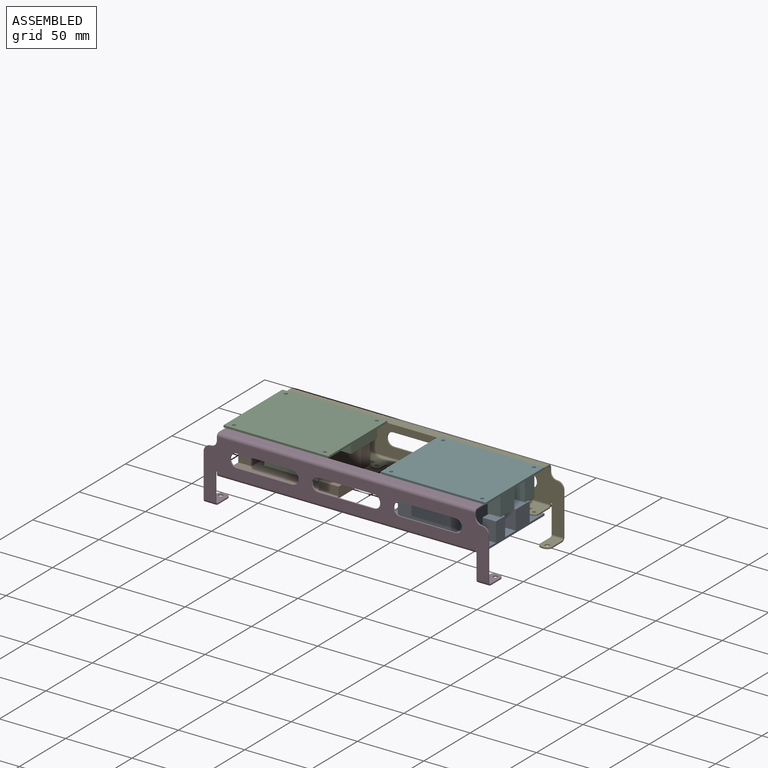
[diagram: assembled view]
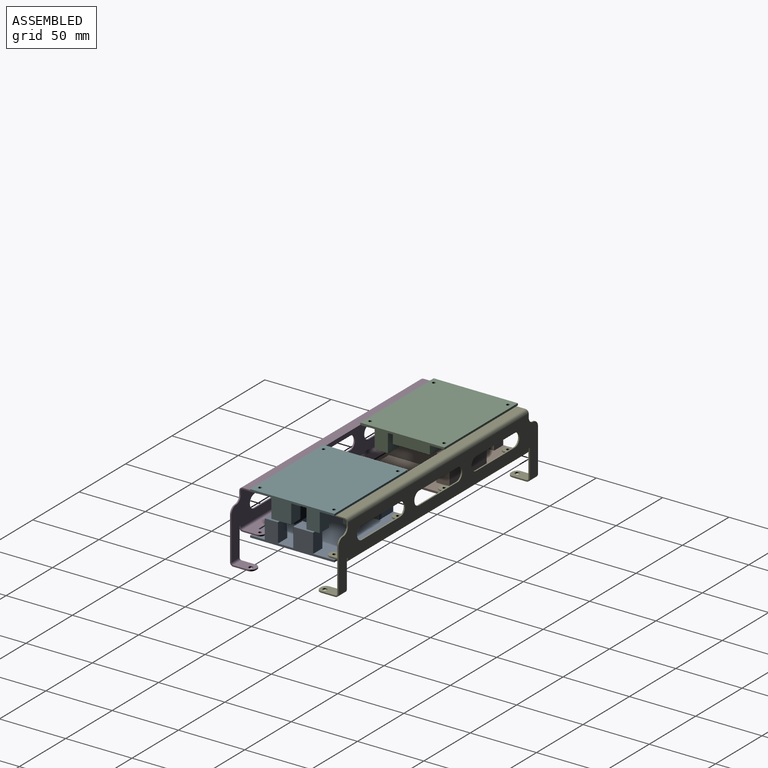
[diagram: assembled view, second angle]
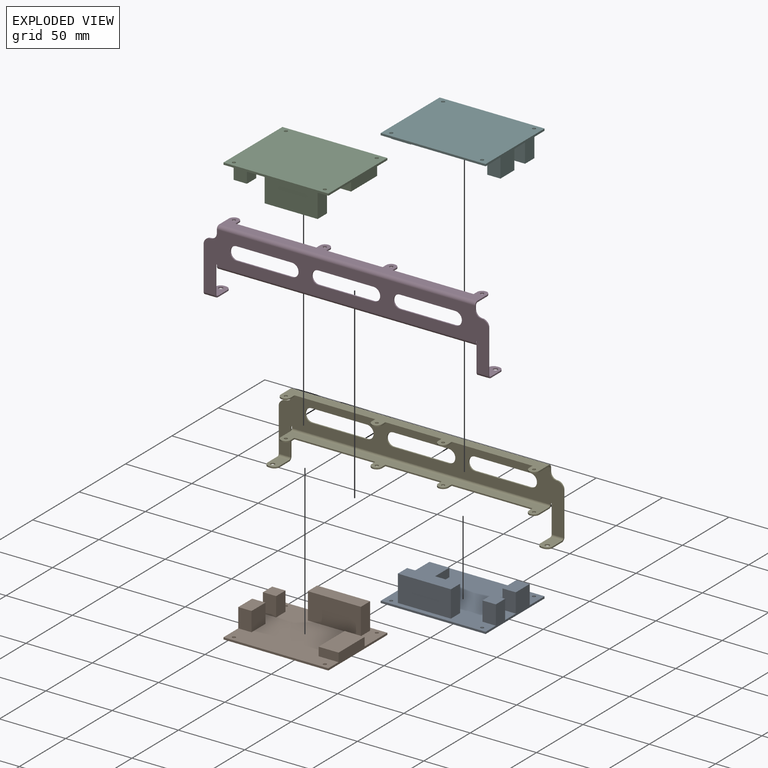
[diagram: exploded view]
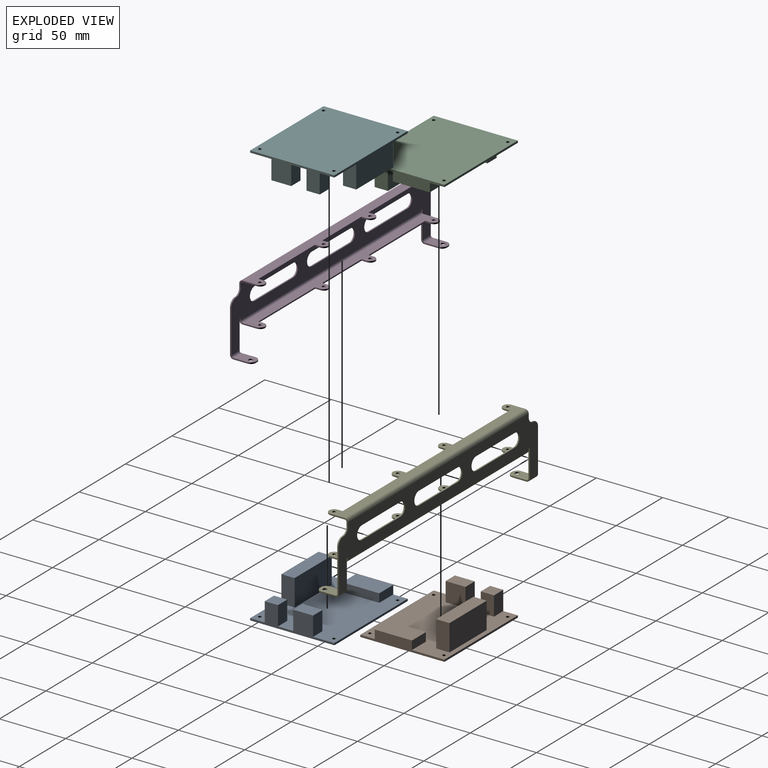
[diagram: exploded view, second angle]
ASSEMBLY  parts=6 mates=5
PART A: 27 faces, bbox 63.5x79.1x21.5 mm
  f0: plane 79.12x63.5mm, normal (0,0,1), area 3934.5mm2, adj f1,f2,f3,f4,f6,f7,f8,f9
  f1: plane 63.5x8mm, normal (0,-1,0), area 277.3mm2, adj f0,f2,f4,f5,f23,f24,f26
  f2: plane 79.12x1.5mm, normal (1,0,0), area 118.7mm2, adj f0,f1,f3,f5
  f3: plane 63.5x16mm, normal (0,1,0), area 457.7mm2, adj f0,f2,f4,f5,f10,f12,f13,f14
  f4: plane 79.12x1.5mm, normal (-1,0,0), area 118.7mm2, adj f0,f1,f3,f5
  f5: plane 79.12x63.5mm, normal (0,0,-1), area 5004.5mm2, adj f1,f2,f3,f4,f6,f7,f8,f9
  f6: cylinder r=1.25mm len=2.5mm, axis (0,0,1), area 11.8mm2, adj f0,f5
  f7: cylinder r=1.25mm len=2.5mm, axis (0,0,1), area 11.8mm2, adj f0,f5
  f8: cylinder r=1.25mm len=2.5mm, axis (0,0,1), area 11.8mm2, adj f0,f5
  f9: cylinder r=1.25mm len=2.5mm, axis (0,0,1), area 11.8mm2, adj f0,f5
  f10: plane 14.5x10mm, normal (-1,0,0), area 145mm2, adj f0,f3,f11,f13
  f11: plane 15x14.5mm, normal (0,-1,0), area 217.5mm2, adj f0,f10,f12,f13
  f12: plane 14.5x10mm, normal (1,0,0), area 145mm2, adj f0,f3,f11,f13
  f13: plane 15x10mm, normal (0,0,1), area 150mm2, adj f3,f10,f11,f12
  f14: plane 14.5x10mm, normal (1,0,0), area 145mm2, adj f0,f3,f16,f17
  f15: plane 14.5x10mm, normal (-1,0,0), area 145mm2, adj f0,f3,f16,f17
  f16: plane 14.5x10mm, normal (0,-1,0), area 145mm2, adj f0,f14,f15,f17
  f17: plane 10x10mm, normal (0,0,1), area 100mm2, adj f3,f14,f15,f16
  f18: plane 20x10mm, normal (0,1,0), area 200mm2, adj f0,f19,f21,f22
  f19: plane 40x20mm, normal (-1,0,0), area 800mm2, adj f0,f18,f20,f22
  f20: plane 20x10mm, normal (0,-1,0), area 200mm2, adj f0,f19,f21,f22
  f21: plane 40x20mm, normal (1,0,0), area 800mm2, adj f0,f18,f20,f22
  f22: plane 40x10mm, normal (0,0,1), area 400mm2, adj f18,f19,f20,f21
  f23: plane 15x6.5mm, normal (-1,0,0), area 97.5mm2, adj f0,f1,f25,f26
  f24: plane 15x6.5mm, normal (1,0,0), area 97.5mm2, adj f0,f1,f25,f26
  f25: plane 28x6.5mm, normal (0,1,0), area 182mm2, adj f0,f23,f24,f26
  f26: plane 28x15mm, normal (0,0,1), area 420mm2, adj f1,f23,f24,f25
PART B: same geometry as A
PART C: same geometry as A
PART D: 102 faces, bbox 214.8x16.8x50 mm
  f0: plane 214.76x45mm, normal (0,-1,0), area 4090.8mm2, adj f2,f3,f4,f5,f6,f7,f8,f9
  f1: plane 214.76x45mm, normal (0,1,0), area 4090.8mm2, adj f2,f3,f4,f5,f6,f7,f8,f9
  f2: plane 41.59x1mm, normal (0,0,1), area 41.6mm2, adj f0,f1,f15,f23
  f3: plane 41.59x1mm, normal (0,0,-1), area 41.6mm2, adj f0,f1,f17,f20
  f4: plane 20.75x1mm, normal (-1,0,0), area 20.7mm2, adj f0,f1,f24,f98
  f5: plane 32.5x1mm, normal (1,0,0), area 32.5mm2, adj f0,f1,f22,f99
  f6: plane 2.5x1mm, normal (1,0,0), area 2.5mm2, adj f0,f1,f21,f74
  f7: plane 2.5x1mm, normal (-1,0,0), area 2.5mm2, adj f0,f1,f18,f75
  f8: plane 32.5x1mm, normal (-1,0,0), area 32.5mm2, adj f0,f1,f19,f86
  f9: plane 41.59x1mm, normal (0,0,-1), area 41.6mm2, adj f0,f1,f14,f16
  f10: plane 41.59x1mm, normal (0,0,1), area 41.6mm2, adj f0,f1,f14,f16
  f11: plane 20.75x1mm, normal (1,0,0), area 20.7mm2, adj f0,f1,f27,f87
  f12: plane 41.59x1mm, normal (0,0,1), area 41.6mm2, adj f0,f1,f17,f20
  f13: plane 41.59x1mm, normal (0,0,-1), area 41.6mm2, adj f0,f1,f15,f23
  f14: cylinder r=5mm len=10mm, axis (0,1,0), area 15.7mm2, adj f0,f1,f9,f10
  f15: cylinder r=5mm len=10mm, axis (0,-1,0), area 15.7mm2, adj f0,f1,f2,f13
  f16: cylinder r=5mm len=10mm, axis (0,1,0), area 15.7mm2, adj f0,f1,f9,f10
  f17: cylinder r=5mm len=10mm, axis (0,-1,0), area 15.7mm2, adj f0,f1,f3,f12
  f18: cylinder r=5mm len=5mm, axis (0,-1,0), area 7.9mm2, adj f0,f1,f7,f19
  f19: cylinder r=5mm len=5mm, axis (0,-1,0), area 7.9mm2, adj f0,f1,f8,f18
  f20: cylinder r=5mm len=10mm, axis (0,1,0), area 15.7mm2, adj f0,f1,f3,f12
  f21: cylinder r=5mm len=5mm, axis (0,1,0), area 7.9mm2, adj f0,f1,f6,f22
  f22: cylinder r=5mm len=5mm, axis (0,-1,0), area 7.9mm2, adj f0,f1,f5,f21
  f23: cylinder r=5mm len=10mm, axis (0,-1,0), area 15.7mm2, adj f0,f1,f2,f13
  f24: cylinder r=0.53mm len=1.06mm, axis (0,1,0), area 1.7mm2, adj f0,f1,f4,f25
  f25: plane 1x0.75mm, normal (1,0,0), area 0.7mm2, adj f0,f1,f24,f49
  f26: plane 1x0.75mm, normal (-1,0,0), area 0.7mm2, adj f0,f1,f27,f50
  f27: cylinder r=0.53mm len=1.06mm, axis (0,1,0), area 1.7mm2, adj f0,f1,f11,f26
  f28: cylinder r=3.8mm len=7.6mm, axis (0,0,-1), area 11.9mm2, adj f29,f46,f47,f48
  f29: plane 3.8x1mm, normal (1,0,0), area 3.8mm2, adj f28,f30,f47,f48
  f30: plane 60.98x1mm, normal (0,1,0), area 61mm2, adj f29,f31,f47,f48
  f31: plane 3.8x1mm, normal (-1,0,0), area 3.8mm2, adj f30,f32,f47,f48
  f32: cylinder r=3.8mm len=7.6mm, axis (0,0,-1), area 11.9mm2, adj f31,f33,f47,f48
  f33: plane 3.8x1mm, normal (1,0,0), area 3.8mm2, adj f32,f34,f47,f48
  f34: plane 42.4x1mm, normal (0,1,0), area 42.4mm2, adj f33,f35,f47,f48
  f35: plane 3.8x1mm, normal (-1,0,0), area 3.8mm2, adj f34,f36,f47,f48
  f36: cylinder r=3.8mm len=7.6mm, axis (0,0,-1), area 11.9mm2, adj f35,f37,f47,f48
  f37: plane 3.8x1mm, normal (1,0,0), area 3.8mm2, adj f36,f38,f47,f48
  f38: plane 60.98x1mm, normal (0,1,0), area 61mm2, adj f37,f39,f47,f48
  f39: plane 3.8x1mm, normal (-1,0,0), area 3.8mm2, adj f38,f40,f47,f48
  f40: cylinder r=3.8mm len=7.6mm, axis (0,0,-1), area 11.9mm2, adj f39,f41,f47,f48
  f41: plane 10.5x1mm, normal (1,0,0), area 10.5mm2, adj f40,f47,f48,f49
  f42: cylinder r=1.25mm len=2.5mm, axis (0,0,-1), area 7.9mm2, adj f47,f48
  f43: cylinder r=1.25mm len=2.5mm, axis (0,0,-1), area 7.9mm2, adj f47,f48
  f44: cylinder r=1.25mm len=2.5mm, axis (0,0,-1), area 7.9mm2, adj f47,f48
  f45: cylinder r=1.25mm len=2.5mm, axis (0,0,-1), area 7.9mm2, adj f47,f48
  f46: plane 10.5x1mm, normal (-1,0,0), area 10.5mm2, adj f28,f47,f48,f50
  f47: plane 194.76x14.3mm, normal (0,0,-1), area 1491.5mm2, adj f28,f29,f30,f31,f32,f33,f34,f35
  f48: plane 194.76x14.3mm, normal (0,0,1), area 1491.5mm2, adj f28,f29,f30,f31,f32,f33,f34,f35
  f49: plane 2.5x2.5mm, normal (1,0,0), area 3.1mm2, adj f25,f41,f51,f52
  f50: plane 2.5x2.5mm, normal (-1,0,0), area 3.1mm2, adj f26,f46,f51,f52
  f51: cylinder r=2.5mm len=194.76mm, axis (1,0,0), area 764.8mm2, adj f0,f47,f49,f50
  f52: cylinder r=1.5mm len=194.76mm, axis (1,0,0), area 458.9mm2, adj f1,f48,f49,f50
  f53: cylinder r=3.8mm len=7.6mm, axis (0,0,1), area 11.9mm2, adj f54,f71,f72,f73
  f54: plane 3.8x1mm, normal (-1,0,0), area 3.8mm2, adj f53,f55,f72,f73
  f55: plane 60.98x1mm, normal (0,1,0), area 61mm2, adj f54,f56,f72,f73
  f56: plane 3.8x1mm, normal (1,0,0), area 3.8mm2, adj f55,f57,f72,f73
  f57: cylinder r=3.8mm len=7.6mm, axis (0,0,1), area 11.9mm2, adj f56,f58,f72,f73
  f58: plane 3.8x1mm, normal (-1,0,0), area 3.8mm2, adj f57,f59,f72,f73
  f59: plane 42.4x1mm, normal (0,1,0), area 42.4mm2, adj f58,f60,f72,f73
  f60: plane 3.8x1mm, normal (1,0,0), area 3.8mm2, adj f59,f61,f72,f73
  f61: cylinder r=3.8mm len=7.6mm, axis (0,0,1), area 11.9mm2, adj f60,f62,f72,f73
  f62: plane 3.8x1mm, normal (-1,0,0), area 3.8mm2, adj f61,f63,f72,f73
  f63: plane 60.98x1mm, normal (0,1,0), area 61mm2, adj f62,f64,f72,f73
  f64: plane 3.8x1mm, normal (1,0,0), area 3.8mm2, adj f63,f65,f72,f73
  f65: cylinder r=3.8mm len=7.6mm, axis (0,0,1), area 11.9mm2, adj f64,f66,f72,f73
  f66: plane 10.5x1mm, normal (-1,0,0), area 10.5mm2, adj f65,f72,f73,f75
  f67: cylinder r=1.25mm len=2.5mm, axis (0,0,1), area 7.9mm2, adj f72,f73
  f68: cylinder r=1.25mm len=2.5mm, axis (0,0,1), area 7.9mm2, adj f72,f73
  f69: cylinder r=1.25mm len=2.5mm, axis (0,0,1), area 7.9mm2, adj f72,f73
  f70: cylinder r=1.25mm len=2.5mm, axis (0,0,1), area 7.9mm2, adj f72,f73
  f71: plane 10.5x1mm, normal (1,0,0), area 10.5mm2, adj f53,f72,f73,f74
  f72: plane 194.76x14.3mm, normal (0,0,1), area 1491.5mm2, adj f53,f54,f55,f56,f57,f58,f59,f60
  f73: plane 194.76x14.3mm, normal (0,0,-1), area 1491.5mm2, adj f53,f54,f55,f56,f57,f58,f59,f60
  f74: plane 2.5x2.5mm, normal (1,0,0), area 3.1mm2, adj f6,f71,f76,f77
  f75: plane 2.5x2.5mm, normal (-1,0,0), area 3.1mm2, adj f7,f66,f76,f77
  f76: cylinder r=2.5mm len=194.76mm, axis (1,0,0), area 764.8mm2, adj f0,f72,f74,f75
  f77: cylinder r=1.5mm len=194.76mm, axis (1,0,0), area 458.9mm2, adj f1,f73,f74,f75
  f78: cylinder r=3.8mm len=3.8mm, axis (0,0,-1), area 6mm2, adj f79,f83,f84,f85
  f79: plane 1.34x1mm, normal (0,1,0), area 1.3mm2, adj f78,f80,f84,f85
  f80: cylinder r=3.8mm len=3.8mm, axis (0,0,-1), area 6mm2, adj f79,f81,f84,f85
  f81: plane 10.5x1mm, normal (1,0,0), area 10.5mm2, adj f80,f84,f85,f87
  f82: cylinder r=1.6mm len=3.2mm, axis (0,0,-1), area 10.1mm2, adj f84,f85
  f83: plane 10.5x1mm, normal (-1,0,0), area 10.5mm2, adj f78,f84,f85,f86
  f84: plane 14.3x8.94mm, normal (0,0,-1), area 113.6mm2, adj f78,f79,f80,f81,f82,f83,f88
  f85: plane 14.3x8.94mm, normal (0,0,1), area 113.6mm2, adj f78,f79,f80,f81,f82,f83,f89
  f86: plane 2.5x2.5mm, normal (-1,0,0), area 3.1mm2, adj f8,f83,f88,f89
  f87: plane 2.5x2.5mm, normal (1,0,0), area 3.1mm2, adj f11,f81,f88,f89
  f88: cylinder r=2.5mm len=8.94mm, axis (-1,0,0), area 35.1mm2, adj f0,f84,f86,f87
  f89: cylinder r=1.5mm len=8.94mm, axis (-1,0,0), area 21.1mm2, adj f1,f85,f86,f87
  f90: cylinder r=3.8mm len=3.8mm, axis (0,0,-1), area 6mm2, adj f91,f95,f96,f97
  f91: plane 1.34x1mm, normal (0,1,0), area 1.3mm2, adj f90,f92,f96,f97
  f92: cylinder r=3.8mm len=3.8mm, axis (0,0,-1), area 6mm2, adj f91,f93,f96,f97
  f93: plane 10.5x1mm, normal (1,0,0), area 10.5mm2, adj f92,f96,f97,f99
  f94: cylinder r=1.6mm len=3.2mm, axis (0,0,-1), area 10.1mm2, adj f96,f97
  f95: plane 10.5x1mm, normal (-1,0,0), area 10.5mm2, adj f90,f96,f97,f98
  f96: plane 14.3x8.94mm, normal (0,0,-1), area 113.6mm2, adj f90,f91,f92,f93,f94,f95,f100
  f97: plane 14.3x8.94mm, normal (0,0,1), area 113.6mm2, adj f90,f91,f92,f93,f94,f95,f101
  f98: plane 2.5x2.5mm, normal (-1,0,0), area 3.1mm2, adj f4,f95,f100,f101
  f99: plane 2.5x2.5mm, normal (1,0,0), area 3.1mm2, adj f5,f93,f100,f101
  f100: cylinder r=2.5mm len=8.94mm, axis (-1,0,0), area 35.1mm2, adj f0,f96,f98,f99
  f101: cylinder r=1.5mm len=8.94mm, axis (-1,0,0), area 21.1mm2, adj f1,f97,f98,f99
PART E: same geometry as D
PART F: same geometry as A
PLACE A rot(axis=(0,0,-1),90deg) t=(59.29,0,20)mm
PLACE B rot(axis=(0,0,1),90deg) t=(-59.29,0,20)mm
PLACE C rot(axis=(-0.71,0.71,0),180deg) t=(-59.29,0,50)mm
PLACE D at identity fixed
PLACE E rot(axis=(0,0,1),180deg) t=(0,0,0)mm
PLACE F rot(axis=(-0.71,-0.71,0),180deg) t=(59.29,0,50)mm
MATE fastened D.f40 <-> A.f7  axis (0,0,-1) through (93.58,-27.94,20)mm
MATE fastened D.f65 <-> C.f7  axis (0,0,1) through (-93.58,-27.94,50)mm
MATE fastened D.f28 <-> B.f6  axis (0,0,-1) through (-93.58,-27.94,20)mm
MATE fastened E.f53 <-> C.f6  axis (0,0,1) through (-93.58,27.94,50)mm
MATE fastened D.f53 <-> F.f6  axis (0,0,1) through (93.58,-27.94,50)mm
